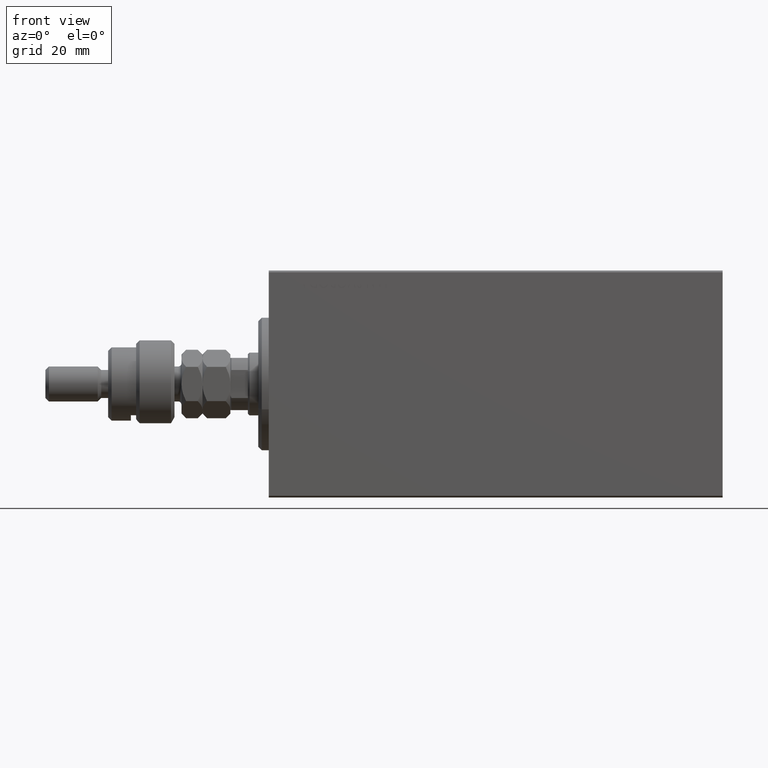
[diagram: clean part render]
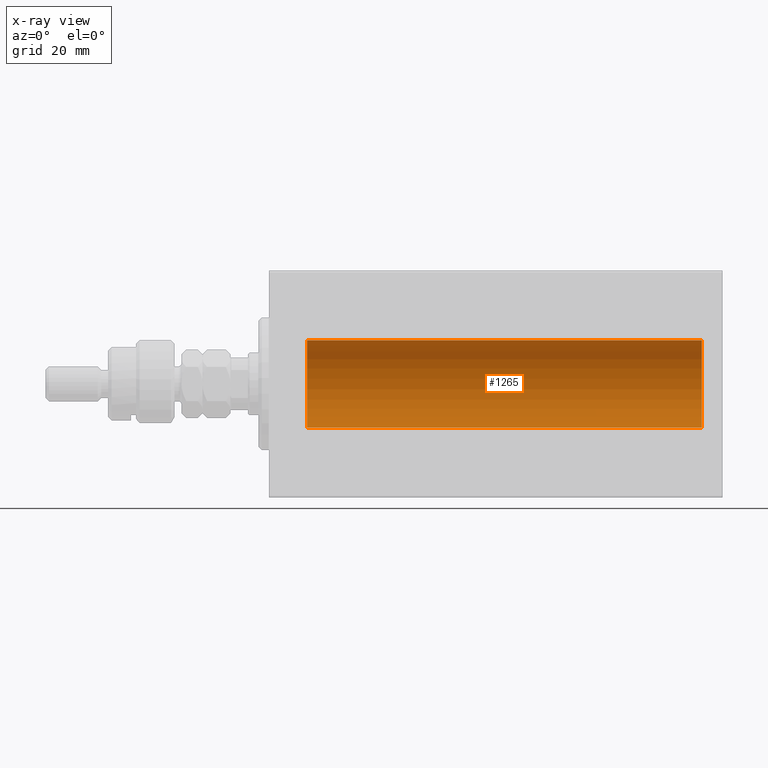
[diagram: x-ray — body ghosted, one internal face saturated and labeled with its STEP entity id]
A machine part, front view, then the same camera in x-ray: the body is ghosted and one INTERNAL B-rep face — a face not visible from any outside direction — is saturated and labeled: STEP entity #1265.
In plain terms, the highlighted cylindrical surface (partial cylindrical patch) has radius 12.5 mm, axis along (-1, -0, -0).
Its self-contained STEP definition (entity closure, byte-faithful):
#1265 = ADVANCED_FACE ( 'NONE', ( #6642 ), #17959, .F. ) ;
#3325 = ORIENTED_EDGE ( 'NONE', *, *, #36135, .T. ) ;
#3343 = CARTESIAN_POINT ( 'NONE',  ( 10.99999999999999645, 0.000000000000000000, 0.000000000000000000 ) ) ;
#5305 = DIRECTION ( 'NONE',  ( -1.000000000000000000, -0.000000000000000000, -0.000000000000000000 ) ) ;
#5657 = EDGE_CURVE ( 'NONE', #33606, #31391, #32107, .T. ) ;
#6627 = DIRECTION ( 'NONE',  ( -1.000000000000000000, 0.000000000000000000, 0.000000000000000000 ) ) ;
#6642 = FACE_OUTER_BOUND ( 'NONE', #18903, .T. ) ;
#9035 = CIRCLE ( 'NONE', #38393, 12.50000000000000000 ) ;
#9461 = DIRECTION ( 'NONE',  ( 0.000000000000000000, 0.000000000000000000, 1.000000000000000000 ) ) ;
#11795 = AXIS2_PLACEMENT_3D ( 'NONE', #17006, #6627, #9461 ) ;
#12119 = EDGE_CURVE ( 'NONE', #31391, #29037, #12150, .T. ) ;
#12150 = LINE ( 'NONE', #44430, #41352 ) ;
#12585 = EDGE_CURVE ( 'NONE', #13327, #29037, #9035, .T. ) ;
#13327 = VERTEX_POINT ( 'NONE', #15401 ) ;
#13712 = DIRECTION ( 'NONE',  ( -1.000000000000000000, -0.000000000000000000, -0.000000000000000000 ) ) ;
#15401 = CARTESIAN_POINT ( 'NONE',  ( 10.99999999999999645, 0.000000000000000000, 12.50000000000000000 ) ) ;
#17006 = CARTESIAN_POINT ( 'NONE',  ( 124.0000000000000000, 0.000000000000000000, 0.000000000000000000 ) ) ;
#17959 = CYLINDRICAL_SURFACE ( 'NONE', #44159, 12.50000000000000000 ) ;
#18903 = EDGE_LOOP ( 'NONE', ( #27911, #37494, #3325, #33426 ) ) ;
#22967 = VECTOR ( 'NONE', #25928, 1000.000000000000000 ) ;
#24778 = DIRECTION ( 'NONE',  ( 0.000000000000000000, 0.000000000000000000, 1.000000000000000000 ) ) ;
#25928 = DIRECTION ( 'NONE',  ( -1.000000000000000000, -0.000000000000000000, -0.000000000000000000 ) ) ;
#27911 = ORIENTED_EDGE ( 'NONE', *, *, #12119, .F. ) ;
#29037 = VERTEX_POINT ( 'NONE', #32774 ) ;
#29487 = CARTESIAN_POINT ( 'NONE',  ( 124.0000000000000000, 0.000000000000000000, 12.50000000000000000 ) ) ;
#29910 = LINE ( 'NONE', #36754, #22967 ) ;
#31391 = VERTEX_POINT ( 'NONE', #34290 ) ;
#32107 = CIRCLE ( 'NONE', #11795, 12.50000000000000000 ) ;
#32774 = CARTESIAN_POINT ( 'NONE',  ( 10.99999999999999645, 1.530808498934191521E-15, -12.50000000000000000 ) ) ;
#33426 = ORIENTED_EDGE ( 'NONE', *, *, #12585, .T. ) ;
#33606 = VERTEX_POINT ( 'NONE', #29487 ) ;
#34290 = CARTESIAN_POINT ( 'NONE',  ( 124.0000000000000000, 1.530808498934191521E-15, -12.50000000000000000 ) ) ;
#35151 = DIRECTION ( 'NONE',  ( -1.000000000000000000, 0.000000000000000000, 0.000000000000000000 ) ) ;
#36135 = EDGE_CURVE ( 'NONE', #33606, #13327, #29910, .T. ) ;
#36754 = CARTESIAN_POINT ( 'NONE',  ( 124.0000000000000000, 0.000000000000000000, 12.50000000000000000 ) ) ;
#37494 = ORIENTED_EDGE ( 'NONE', *, *, #5657, .F. ) ;
#38393 = AXIS2_PLACEMENT_3D ( 'NONE', #3343, #35151, #42471 ) ;
#39382 = CARTESIAN_POINT ( 'NONE',  ( 124.0000000000000000, 0.000000000000000000, 0.000000000000000000 ) ) ;
#41352 = VECTOR ( 'NONE', #5305, 1000.000000000000000 ) ;
#42471 = DIRECTION ( 'NONE',  ( 0.000000000000000000, 0.000000000000000000, 1.000000000000000000 ) ) ;
#44159 = AXIS2_PLACEMENT_3D ( 'NONE', #39382, #13712, #24778 ) ;
#44430 = CARTESIAN_POINT ( 'NONE',  ( 124.0000000000000000, 1.530808498934191521E-15, -12.50000000000000000 ) ) ;